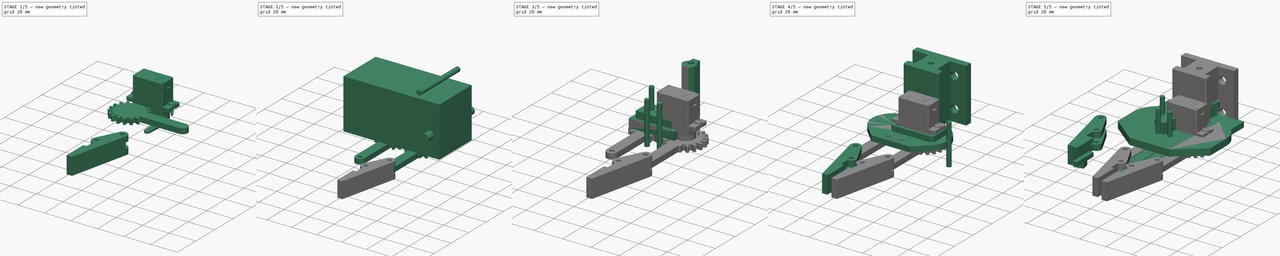
[diagram: build sequence overview — one tinted view per stage of 5, left to right]
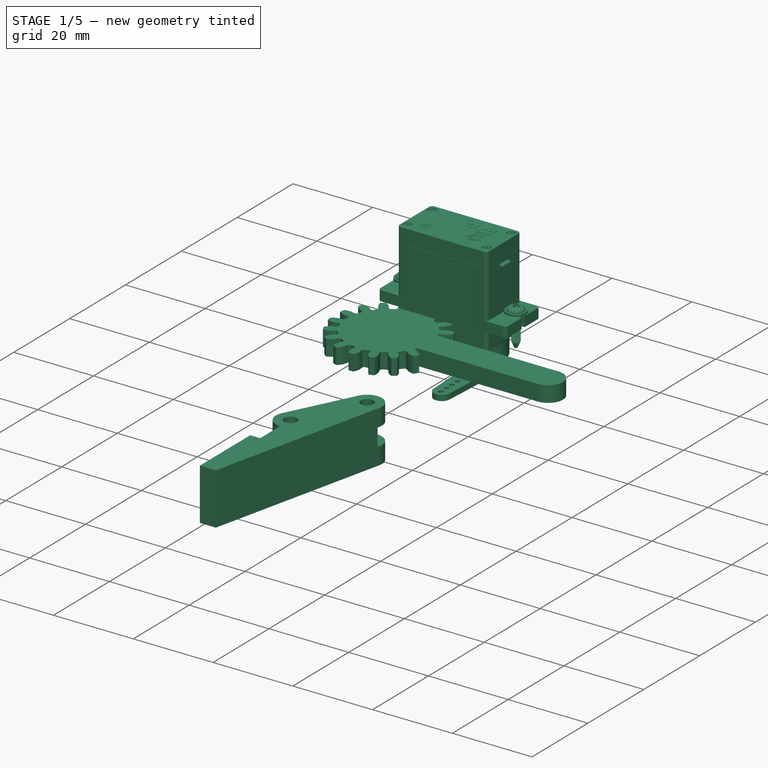
[diagram: stage 1 of 5 — iso view after this stage's code; geometry added in this stage tinted green]
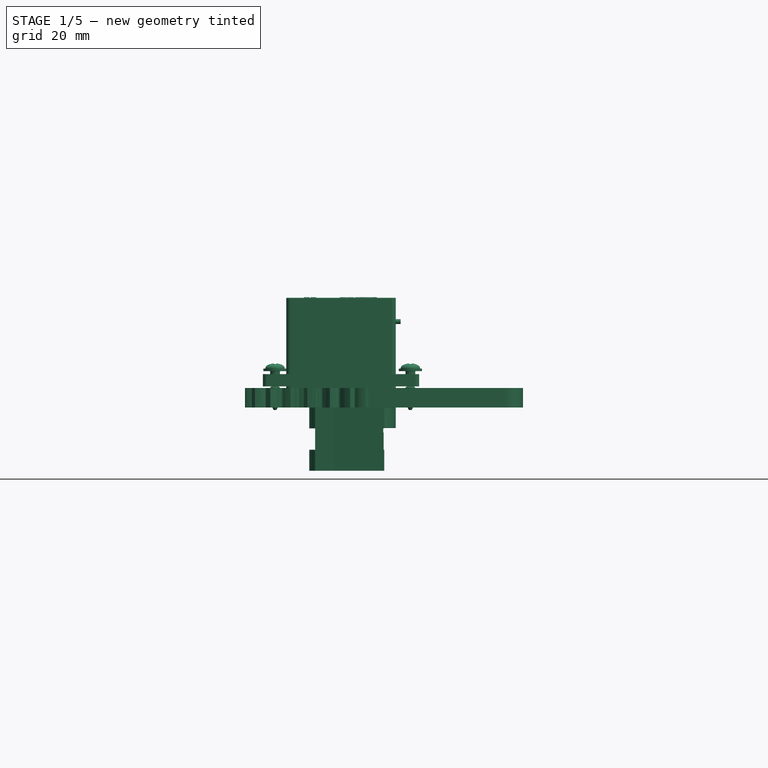
[diagram: stage 1 of 5 — front view after this stage's code; geometry added in this stage tinted green]
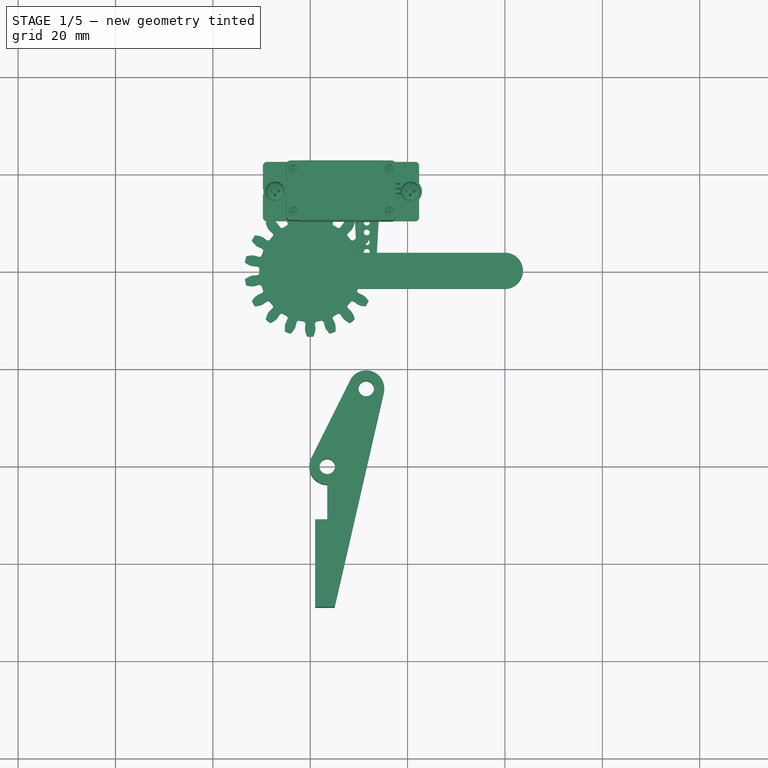
[diagram: stage 1 of 5 — top view after this stage's code; geometry added in this stage tinted green]
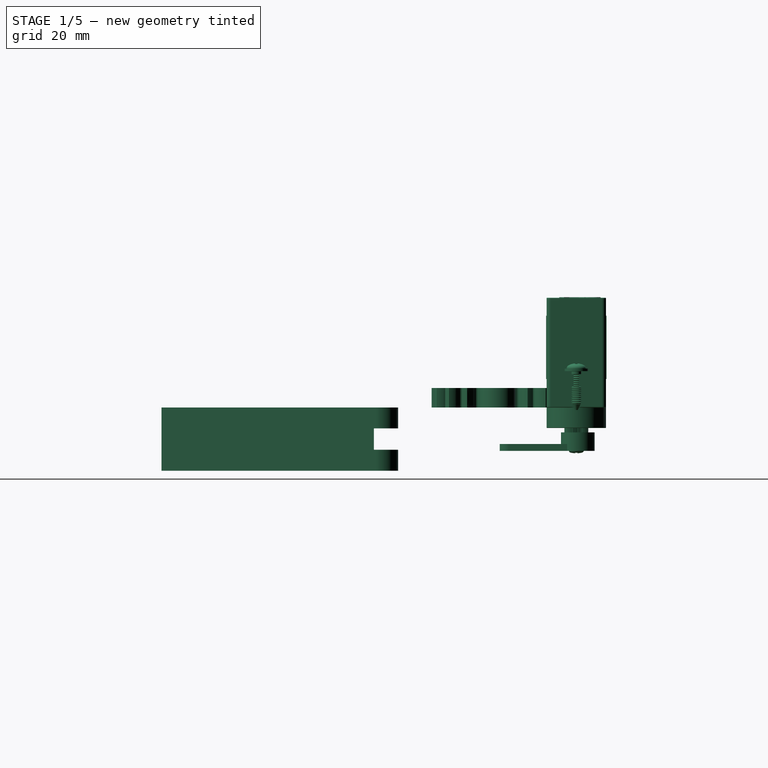
[diagram: stage 1 of 5 — right view after this stage's code; geometry added in this stage tinted green]
FCSTD DOCUMENT  (FreeCAD 0.16R6712 (Git))
Label: Nueva pinza
License: All rights reserved
LicenseURL: http://en.wikipedia.org/wiki/All_rights_reserved
objects: Part::FeaturePython×20, Part::Feature×20, Part::MultiFuse×18, Sketcher::SketchObject×15, Part::Cut×12, PartDesign::Pad×7, Part::Box×7, Part::Cylinder×7, App::DocumentObjectGroup×5, Part::Fillet×4, Part::Part2DObjectPython×4, PartDesign::Pocket×3, PartDesign::Body×2, Part::Extrusion×2
note: 131 computed .brp shape members not serialized (recipe doc carries the construction recipe); baked Part::Feature solids carry a one-line shape summary decoded from their .brp

FEATURE [Part::Cylinder] Cylinder005  label="finger-drill-master"
  Angle = 360
  Height = 30
  Placement = pos=(0,0,-8) rot=(0,0,1;0rad)
  Radius = 1.6
FEATURE [Part::FeaturePython] Clone001  label="finger-claw-drill-1"  # Draft clone (typed FeaturePython)
  Objects = -> [Cylinder005]
  Placement = pos=(-5.5,28.9,-8) rot=(0,0,1;0rad)
  Scale = (1,1,1)
FEATURE [Part::FeaturePython] Clone002  label="finger-claw-drill-2"  # Draft clone (typed FeaturePython)
  Objects = -> [Cylinder005]
  Placement = pos=(-13.5,44.9,-8) rot=(0,0,1;0rad)
  Scale = (1,1,1)
FEATURE [Part::MultiFuse] Fusion012  label="finger-drills"
  Shapes = -> [Clone002,Clone001]
FEATURE [Part::Part2DObjectPython] InvoluteGear001  # Draft 2D object (typed FeaturePython)
  ExternalGear = true
  HighPrecision = true
  Modules = 1.35
  NumberOfTeeth = 18
  Placement = pos=(0,0,0) rot=(0,0,-1;0.174533rad)
  PressureAngle = 12
FEATURE [Sketcher::SketchObject] Sketch004  label="link-body-sketch002"
  sketch-geometry (4):
    g0: ArcOfCircle CenterX=0 CenterY=0 CenterZ=0 NormalX=0 NormalY=0 NormalZ=1 Radius=3.7 StartAngle=1.5708 EndAngle=4.71239
    g1: ArcOfCircle CenterX=40 CenterY=0 CenterZ=0 NormalX=0 NormalY=0 NormalZ=1 Radius=3.7 StartAngle=4.71239 EndAngle=7.85398
    g2: LineSegment StartX=0 StartY=-3.7 StartZ=0 EndX=40 EndY=-3.7 EndZ=0
    g3: LineSegment StartX=0 StartY=3.7 StartZ=0 EndX=40 EndY=3.7 EndZ=0
  constraints (9):
    c: Tangent(g0,g3) = 1.5708
    c: Tangent(g0,g2) = -1.5708
    c: Tangent(g2,g1) = -1.5708
    c: Tangent(g3,g1) = 1.5708
    c: Horizontal(g2)
    c: Equal(g0,g1)
    c: Coincident(g0,g-1)
    c: Radius(g0) = 3.7
    c: DistanceX(g2) = 40
FEATURE [PartDesign::Pad] Pad004  label="link-body002"
  Length = 4
  Length2 = 100
  Sketch = -> Sketch004
  Type = 0
FEATURE [Part::Extrusion] Extrude001
  Base = -> InvoluteGear001
  Dir = (0,0,4)
  Solid = true
FEATURE [Part::Box] Box007  label="Cube002"
  Height = 3
  Length = 5
  Width = 4
FEATURE [Sketcher::SketchObject] Sketch006  label="finger-sketch"
  Placement = pos=(0,0,0) rot=(1,0,0;1.5708rad)
  Support = -> Box007 [Face3]
  sketch-geometry (9):
    g0: LineSegment StartX=0 StartY=0 StartZ=0 EndX=0 EndY=18 EndZ=0
    g1: LineSegment StartX=0 StartY=18 StartZ=0 EndX=-5.5 EndY=18 EndZ=0
    g2: LineSegment StartX=-5.5 StartY=18 StartZ=0 EndX=-5.5 EndY=25.2 EndZ=0
    g3: LineSegment StartX=-17.1064 StartY=44.073 StartZ=0 EndX=-7 EndY=0 EndZ=0
    g4: LineSegment StartX=-7 StartY=0 StartZ=0 EndX=0 EndY=0 EndZ=0
    g5: ArcOfCircle CenterX=-13.5 CenterY=44.9 CenterZ=0 NormalX=0 NormalY=0 NormalZ=1 Radius=3.7 StartAngle=0.463648 EndAngle=3.36701
    g6: ArcOfCircle CenterX=-5.5 CenterY=28.9 CenterZ=0 NormalX=0 NormalY=0 NormalZ=1 Radius=3.7 StartAngle=4.71239 EndAngle=6.74684
    g7: LineSegment StartX=-10.1906 StartY=46.5547 StartZ=0 EndX=-2.19063 EndY=30.5547 EndZ=0
    g8: Circle [constr] CenterX=-5.5 CenterY=28.9 CenterZ=0 NormalX=0 NormalY=0 NormalZ=1 Radius=3.7
  constraints (27):
    c: Vertical(g0)
    c: Coincident(g0,g1)
    c: Horizontal(g1)
    c: Coincident(g1,g2)
    c: Coincident(g3,g4)
    c: Coincident(g4,g0)
    c: Horizontal(g4)
    c: Coincident(g5,g3)
    c: Radius(g5) = 3.7
    c: Coincident(g6,g2)
    c: Coincident(g7,g5)
    c: Coincident(g7,g6)
    c: Equal(g6,g5)
    c: Tangent(g3,g5)
    c: Tangent(g7,g5)
    c: Tangent(g6,g7)
    c: Vertical(g2)
    c: DistanceY(g0) = 18
    c: DistanceX(g4) = 7
    c: DistanceX(g6,g5) = -8
    c: DistanceY(g6,g5) = 16
    c: PointOnObject(g6,g2)
    c: DistanceX(g1) = -5.5
    c: DistanceY(g2,g1) = -7.2
    c: Coincident(g0,g-1)
    c: Coincident(g8,g6)
    c: Equal(g6,g8)
FEATURE [PartDesign::Pad] Pad001  label="finger-body"
  Length = 13
  Length2 = 100
  Sketch = -> Sketch006
  Type = 0
FEATURE [Sketcher::SketchObject] Sketch007
  Placement = pos=(10.4694,5.23469,0) rot=(0.400447,0.647936,0.647936;2.37981rad)
  Support = -> Pad001 [Face8]
  sketch-geometry (6):
    g0: LineSegment StartX=23.2529 StartY=8.7 StartZ=0 EndX=51.2529 EndY=8.7 EndZ=0
    g1: LineSegment StartX=51.2529 StartY=8.7 StartZ=0 EndX=51.2529 EndY=4.3 EndZ=0
    g2: LineSegment StartX=51.2529 StartY=4.3 StartZ=0 EndX=23.2529 EndY=4.3 EndZ=0
    g3: LineSegment StartX=23.2529 StartY=4.3 StartZ=0 EndX=23.2529 EndY=8.7 EndZ=0
    g4: LineSegment [constr] StartX=23.2529 StartY=6.5 StartZ=0 EndX=51.2529 EndY=6.5 EndZ=0
    g5: LineSegment [constr] StartX=37.2529 StartY=13 StartZ=0 EndX=37.2529 EndY=0 EndZ=0
FEATURE [PartDesign::Pocket] Pocket  label="finger"
  Length = 7.4
  Sketch = -> Sketch007
  Type = 0
FEATURE [Part::Cut] Cut010  label="finger-final-src"
  Base = -> Pocket
  Tool = -> Fusion012
FEATURE [Sketcher::SketchObject] Sketch009
  ExternalGeometry = -> [Cut010]
  Placement = pos=(0,0,0) rot=(1,0,0;1.5708rad)
  Support = -> Cut010 [Face7]
  sketch-geometry (5):
    g0: LineSegment StartX=0 StartY=9.9 StartZ=0 EndX=-3 EndY=9.9 EndZ=0
    g1: LineSegment StartX=-3 StartY=9.9 StartZ=0 EndX=-3 EndY=3.1 EndZ=0
    g2: LineSegment StartX=-3 StartY=3.1 StartZ=0 EndX=0 EndY=3.1 EndZ=0
    g3: LineSegment StartX=0 StartY=3.1 StartZ=0 EndX=0 EndY=9.9 EndZ=0
    g4: LineSegment [constr] StartX=-7 StartY=6.5 StartZ=0 EndX=0 EndY=6.5 EndZ=0
  constraints (15):
    c: Coincident(g0,g1)
    c: Coincident(g1,g2)
    c: Coincident(g2,g3)
    c: Coincident(g3,g0)
    c: Horizontal(g0)
    c: Horizontal(g2)
    c: Vertical(g1)
    c: Vertical(g3)
    c: PointOnObject(g0,g-2)
    c: DistanceY(g3) = 6.8
    c: PointOnObject(g4,g-5)
    c: PointOnObject(g4,g3)
    c: Symmetric(g-5,g-5,g4)
    c: Symmetric(g0,g2,g4)
    c: DistanceX(g0) = -3
FEATURE [PartDesign::Pocket] Pocket001  label="left-finger-guide"
  Length = 20
  Sketch = -> Sketch009
  Type = 0
FEATURE [Part::Box] Box011  label="Cubo006"
  Height = 14
  Length = 5
  Placement = pos=(-3,-1,0) rot=(0,0,1;0rad)
  Width = 19
FEATURE [Part::Cut] Cut011  label="left-finger"
  Base = -> Pocket001
  Placement = pos=(1,-69,-12) rot=(0,0,1;0rad)
  Tool = -> Box011
FEATURE [Part::FeaturePython] Clone039  label="Right-finger"  # Draft clone (typed FeaturePython)
  Objects = -> [Cut011]
  Placement = pos=(-2,-69,0) rot=(0,1,0;3.14159rad)
  Scale = (1,1,1)
FEATURE [Part::Feature] Part__Feature  label="SG90 - Micro Servo 9g - Tower Pro.1_Pea"
  Placement = pos=(6.67327,16.8178,27.7832) rot=(0,0,1;0rad)
  shape: bbox 22.5 x 10.3 x 12.2 mm, 10 faces (baked)
FEATURE [Part::Feature] Part__Feature001  label="SG90 - Micro Servo 9g - Tower Pro.1_Pea001"
  Placement = pos=(6.67327,16.8178,27.7832) rot=(0,0,1;0rad)
  shape: bbox 17 x 13 x 0.1 mm, 50 faces (baked)
FEATURE [Part::Feature] Part__Feature002  label="SG90 - Micro Servo 9g - Tower Pro.1_Pea002"
  Placement = pos=(6.67327,16.8178,27.7832) rot=(0,0,1;0rad)
  shape: bbox 17 x 13 x 0.1 mm, 50 faces (baked)
FEATURE [Part::Feature] Part__Feature003  label="SG90 - Micro Servo 9g - Tower Pro.1_Pea003"
  Placement = pos=(6.67327,16.8178,27.7832) rot=(0,0,1;0rad)
  shape: bbox 1.933 x 1 x 1.949 mm, 19 faces (baked)
FEATURE [Part::Feature] Part__Feature004  label="SG90 - Micro Servo 9g - Tower Pro.1_Pea004"
  Placement = pos=(6.67327,16.8178,27.7832) rot=(0,0,1;0rad)
  shape: bbox 1.933 x 1 x 1.949 mm, 19 faces (baked)
FEATURE [Part::Feature] Part__Feature005  label="SG90 - Micro Servo 9g - Tower Pro.1_Pea005"
  Placement = pos=(6.67327,16.8178,27.7832) rot=(0,0,1;0rad)
  shape: bbox 1.933 x 1 x 1.949 mm, 19 faces (baked)
FEATURE [Part::Feature] Part__Feature006  label="SG90 - Micro Servo 9g - Tower Pro.1_Pea006"
  Placement = pos=(6.67327,16.8178,27.7832) rot=(0,0,1;0rad)
  shape: bbox 1.933 x 1 x 1.949 mm, 19 faces (baked)
FEATURE [Part::Feature] Part__Feature007  label="SG90 - Micro Servo 9g - Tower Pro.1_Pea007"
  Placement = pos=(6.67327,16.8178,27.7832) rot=(0,0,1;0rad)
  shape: bbox 22.64 x 5.5 x 12.34 mm, 157 faces (baked)
FEATURE [Part::Feature] Part__Feature008  label="SG90 - Micro Servo 9g - Tower Pro.1_Pea008"
  Placement = pos=(6.67327,16.8178,27.7832) rot=(0,0,1;0rad)
  shape: bbox 3 x 1 x 1 mm, 4 faces (baked)
FEATURE [Part::Feature] Part__Feature009  label="SG90 - Micro Servo 9g - Tower Pro.1_Pea009"
  Placement = pos=(6.67327,16.8178,27.7832) rot=(0,0,1;0rad)
  shape: bbox 3 x 1 x 1 mm, 4 faces (baked)
FEATURE [Part::Feature] Part__Feature010  label="SG90 - Micro Servo 9g - Tower Pro.1_Pea010"
  Placement = pos=(6.67327,16.8178,27.7832) rot=(0,0,1;0rad)
  shape: bbox 3 x 1 x 1 mm, 4 faces (baked)
FEATURE [Part::Feature] Part__Feature011  label="SG90 - Micro Servo 9g - Tower Pro.1_Pea011"
  Placement = pos=(6.67327,16.8178,27.7832) rot=(0,0,1;0rad)
  shape: bbox 32.1 x 11.05 x 13.21 mm, 102 faces (baked)
FEATURE [Part::Feature] Part__Feature018  label="SG90 - Micro Servo 9g - Tower Pro.6_BS EN ISO 7045 - M2 x 4 - Z - 4S"
  Placement = pos=(1.52327,38.2178,27.7832) rot=(0,0,-1;1.5708rad)
  shape: bbox 3.356 x 5.3 x 3.356 mm, 95 faces (baked)
FEATURE [Part::Feature] Part__Feature012  label="SG90 - Micro Servo 9g - Tower Pro.1_Pea012"
  Placement = pos=(6.67327,16.8178,27.7832) rot=(0,0,1;0rad)
  shape: bbox 4.9 x 7.35 x 4.9 mm, 186 faces (baked)
FEATURE [Part::MultiFuse] Fusion016  label="servo"
  Placement = pos=(13,44,29.8) rot=(0,0.707107,-0.707107;3.14159rad)
  Shapes = -> [Part__Feature,Part__Feature009,Part__Feature008,Part__Feature010,Part__Feature012,Part__Feature011,Part__Feature001,Part__Feature002,Part__Feature004,Part__Feature005,Part__Feature007,Part__Feature003,Part__Feature006,Part__Feature018]
FEATURE [Part::Feature] Part__Feature019  label="SG90 - Micro Servo 9g - Tower Pro.5_BS EN ISO 7045 - M2 x 8 - Z - 8S002"
  Placement = pos=(-7.22673,16.2168,10.0678) rot=(-0.57735,0.57735,0.57735;2.0944rad)
  shape: bbox 4.8 x 4.8 x 9.6 mm, 126 faces (baked)
FEATURE [Part::Feature] Part__Feature020  label="SG90 - Micro Servo 9g - Tower Pro.5_BS EN ISO 7045 - M2 x 8 - Z - 8S003"
  Placement = pos=(20.5733,16.2168,10.0678) rot=(0.57735,0.57735,-0.57735;2.0944rad)
  shape: bbox 4.8 x 4.8 x 9.6 mm, 126 faces (baked)
FEATURE [Part::Feature] Part__Feature021  label="SG90 - Micro Servo 9g - Tower Pro.2_Pea001"
  Placement = pos=(11.6168,16.5233,-7.91776) rot=(0.57735,0.57735,-0.57735;4.18879rad)
  shape: bbox 6.9 x 19.5 x 3.8 mm, 206 faces (baked)
FEATURE [Part::MultiFuse] Fusion017  label="Servo"
  Placement = pos=(0,0,-1) rot=(0,0,1;0rad)
  Shapes = -> [Fusion016,Part__Feature019,Part__Feature020,Part__Feature021]
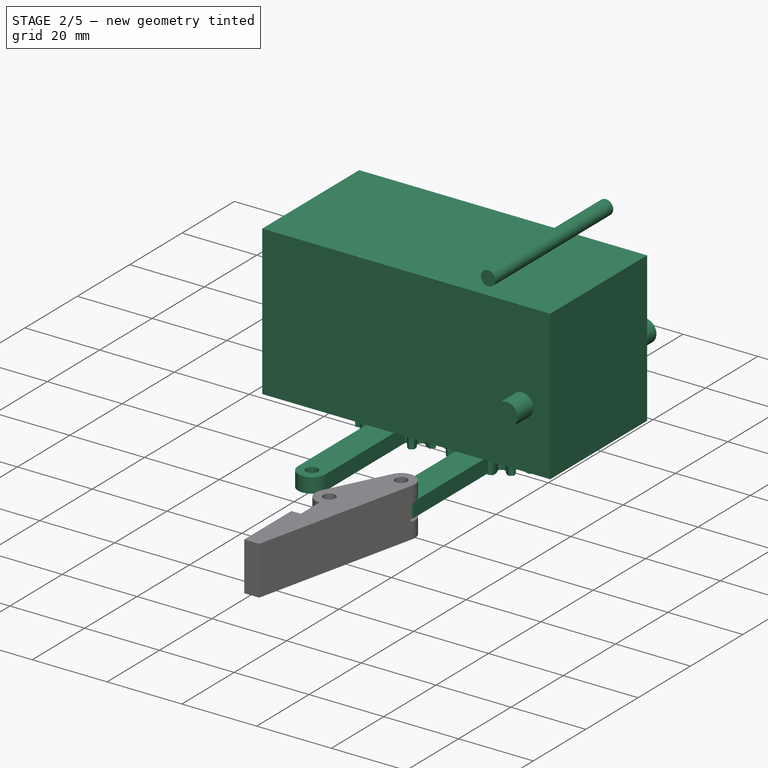
[diagram: stage 2 of 5 — iso view after this stage's code; geometry added in this stage tinted green]
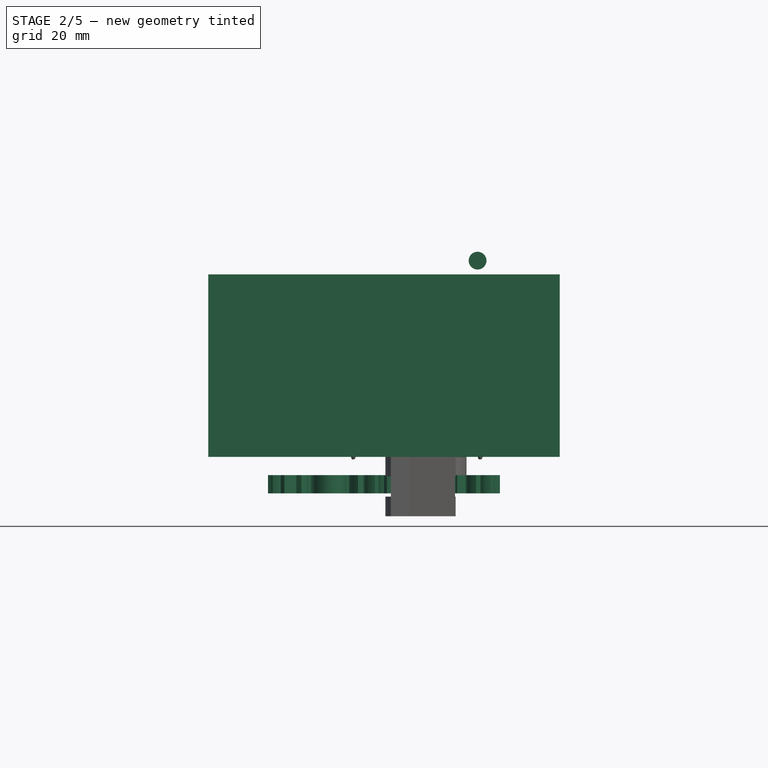
[diagram: stage 2 of 5 — front view after this stage's code; geometry added in this stage tinted green]
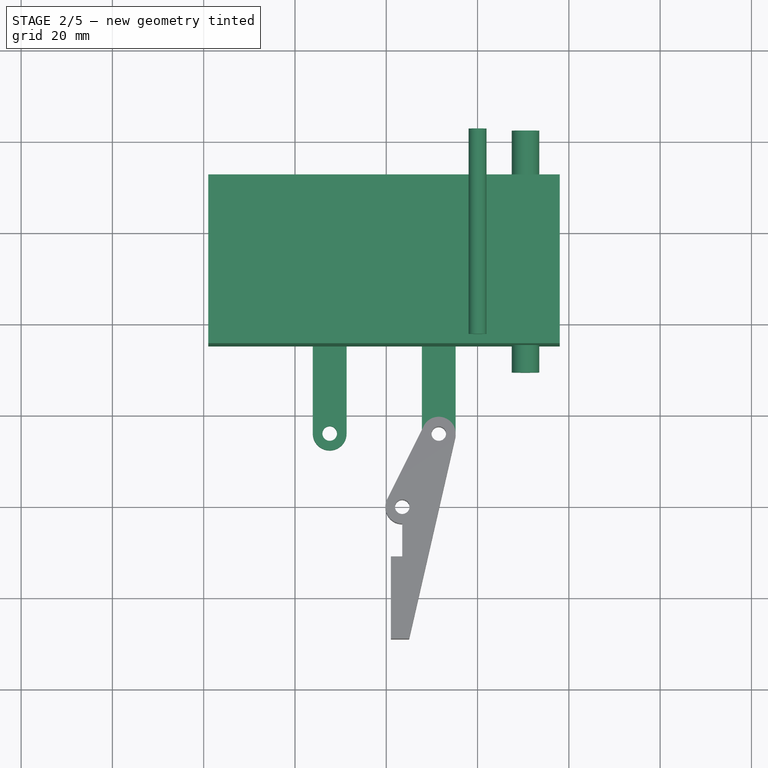
[diagram: stage 2 of 5 — top view after this stage's code; geometry added in this stage tinted green]
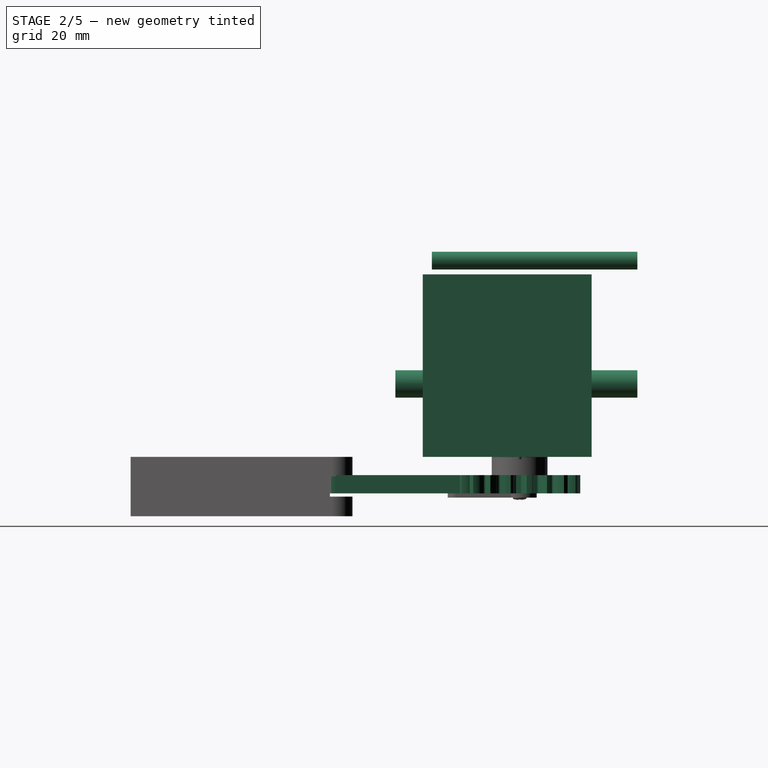
[diagram: stage 2 of 5 — right view after this stage's code; geometry added in this stage tinted green]
FEATURE [Part::Cylinder] Cylinder  label="Taladro"
  Angle = 360
  Height = 53
  Placement = pos=(30.5,42,16) rot=(1,0,0;1.5708rad)
  Radius = 3
FEATURE [Part::Cylinder] Cylinder004  label="Cilindro"
  Angle = 360
  Height = 45
  Placement = pos=(20,42,43) rot=(1,0,0;1.5708rad)
  Radius = 1.95
FEATURE [Part::Box] Box006  label="Cubo005"
  Height = 40
  Length = 77
  Placement = pos=(-39,-5,0) rot=(0,0,1;0rad)
  Width = 37
FEATURE [App::DocumentObjectGroup] Group002  label="link-src"
FEATURE [Part::Part2DObjectPython] InvoluteGear  # Draft 2D object (typed FeaturePython)
  ExternalGear = true
  HighPrecision = true
  Modules = 1.35
  NumberOfTeeth = 18
  PressureAngle = 12
FEATURE [Part::Extrusion] Extrude
  Base = -> InvoluteGear
  Dir = (0,0,4)
  Solid = true
FEATURE [Sketcher::SketchObject] Sketch003  label="link-body-sketch001"
  sketch-geometry (4):
    g0: ArcOfCircle CenterX=0 CenterY=0 CenterZ=0 NormalX=0 NormalY=0 NormalZ=1 Radius=3.7 StartAngle=1.5708 EndAngle=4.71239
    g1: ArcOfCircle CenterX=40 CenterY=0 CenterZ=0 NormalX=0 NormalY=0 NormalZ=1 Radius=3.7 StartAngle=4.71239 EndAngle=7.85398
    g2: LineSegment StartX=0 StartY=-3.7 StartZ=0 EndX=40 EndY=-3.7 EndZ=0
    g3: LineSegment StartX=0 StartY=3.7 StartZ=0 EndX=40 EndY=3.7 EndZ=0
  constraints (9):
    c: Tangent(g0,g3) = 1.5708
    c: Tangent(g0,g2) = -1.5708
    c: Tangent(g2,g1) = -1.5708
    c: Tangent(g3,g1) = 1.5708
    c: Horizontal(g2)
    c: Equal(g0,g1)
    c: Coincident(g0,g-1)
    c: Radius(g0) = 3.7
    c: DistanceX(g2) = 40
FEATURE [PartDesign::Pad] Pad003  label="link-body001"
  Length = 4
  Length2 = 100
  Sketch = -> Sketch003
  Type = 0
FEATURE [Part::MultiFuse] Fusion002
  Shapes = -> [Pad003,Extrude]
FEATURE [Part::FeaturePython] Clone010  label="gear-drill-1"  # Draft clone (typed FeaturePython)
  Objects = -> [Cylinder005]
  Placement = pos=(0,0,-8) rot=(0,0,1;0rad)
  Scale = (1,1,1)
FEATURE [Part::FeaturePython] Clone011  label="gear-drill-2"  # Draft clone (typed FeaturePython)
  Objects = -> [Cylinder005]
  Placement = pos=(40,0,-8) rot=(0,0,1;0rad)
  Scale = (1,1,1)
FEATURE [Part::MultiFuse] Fusion003  label="gear-drills"
  Shapes = -> [Clone010,Clone011]
FEATURE [Part::Cut] Cut002  label="left-gear"
  Base = -> Fusion002
  Placement = pos=(11.5,16,-8) rot=(0,0,-1;1.5708rad)
  Tool = -> Fusion003
FEATURE [Part::Cylinder] Cylinder006  label="finger-drill-master002"
  Angle = 360
  Height = 30
  Placement = pos=(0,0,-8) rot=(0,0,1;0rad)
  Radius = 1.6
FEATURE [Part::FeaturePython] Clone013  label="gear-drill-003"  # Draft clone (typed FeaturePython)
  Objects = -> [Cylinder006]
  Placement = pos=(0,0,-8) rot=(0,0,1;0rad)
  Scale = (1,1,1)
FEATURE [Part::FeaturePython] Clone014  label="gear-drill-004"  # Draft clone (typed FeaturePython)
  Objects = -> [Cylinder006]
  Placement = pos=(40,0,-8) rot=(0,0,1;0rad)
  Scale = (1,1,1)
FEATURE [Part::MultiFuse] Fusion005  label="gear-drills001"
  Shapes = -> [Clone013,Clone014]
FEATURE [Part::MultiFuse] Fusion006
  Shapes = -> [Pad004,Extrude001]
FEATURE [Part::Cut] Cut003  label="right-gear"
  Base = -> Fusion006
  Placement = pos=(-12.4,16,-8) rot=(0,0,-1;1.5708rad)
  Tool = -> Fusion005
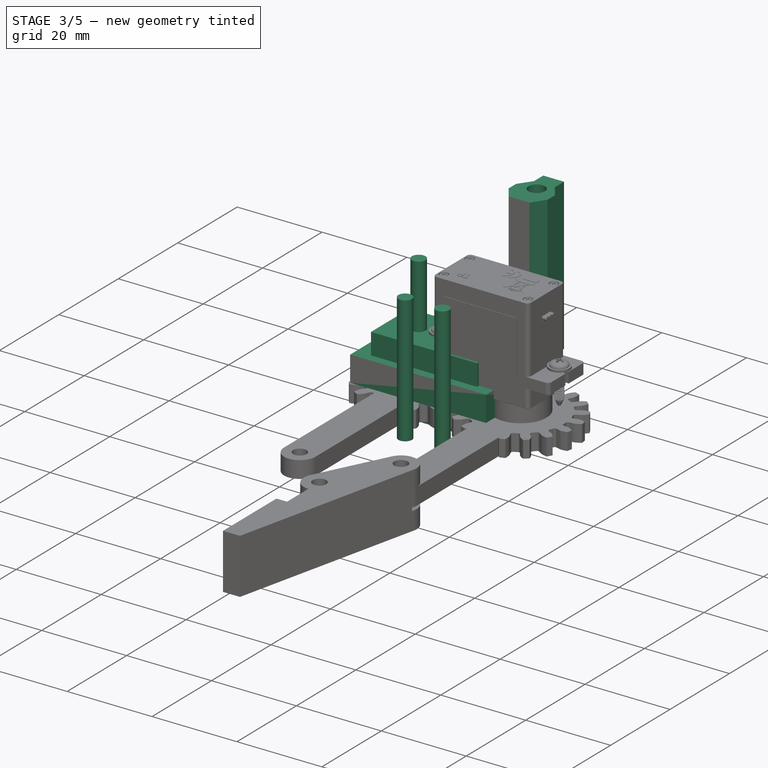
[diagram: stage 3 of 5 — iso view after this stage's code; geometry added in this stage tinted green]
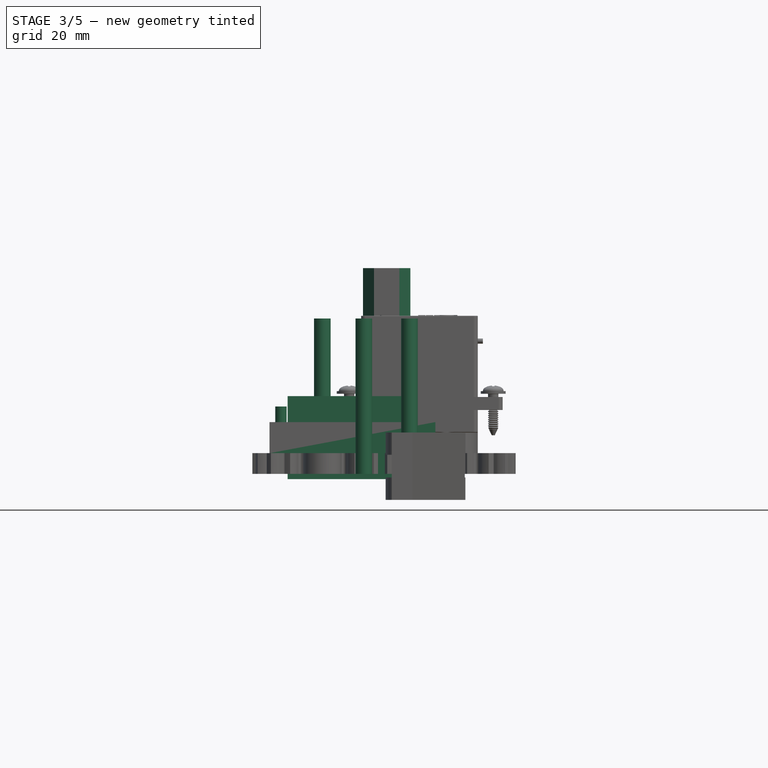
[diagram: stage 3 of 5 — front view after this stage's code; geometry added in this stage tinted green]
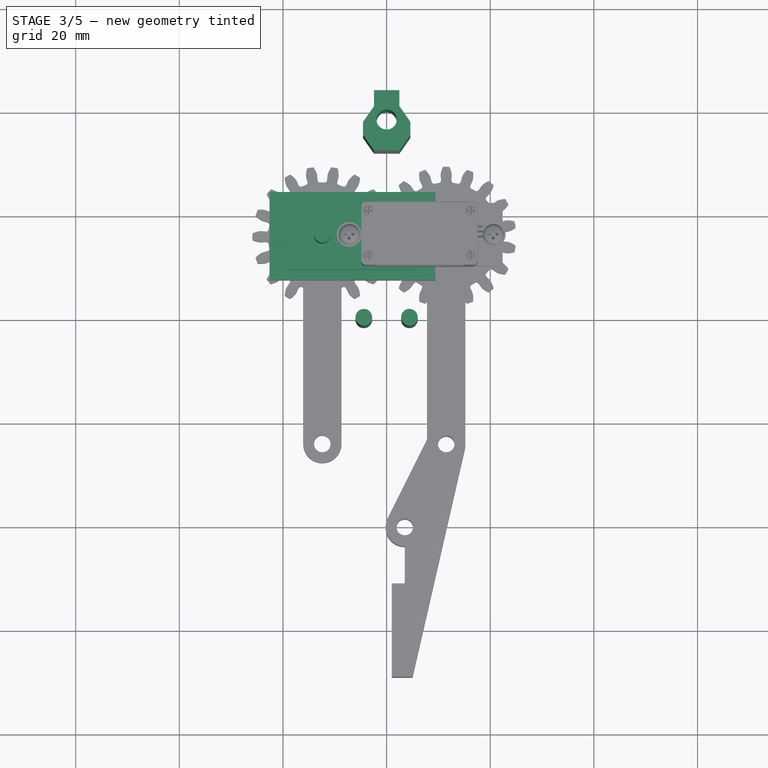
[diagram: stage 3 of 5 — top view after this stage's code; geometry added in this stage tinted green]
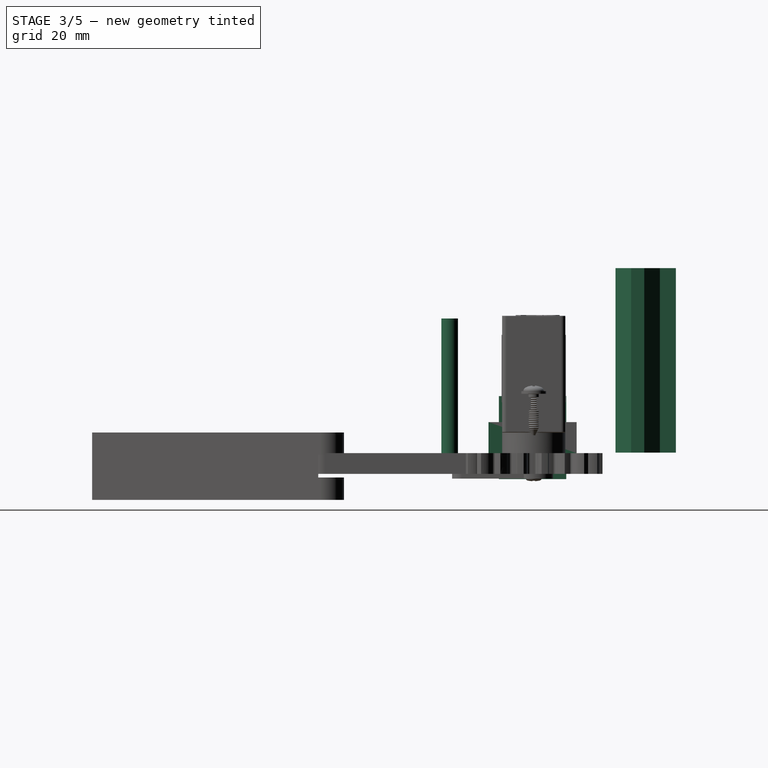
[diagram: stage 3 of 5 — right view after this stage's code; geometry added in this stage tinted green]
FEATURE [Sketcher::SketchObject] Sketch001
  Placement = pos=(0,0,5) rot=(0,0,1;0rad)
  Support = -> Pad [Face10]
  sketch-geometry (10):
    g0: Circle CenterX=-8.96111 CenterY=14.1918 CenterZ=0 NormalX=0 NormalY=0 NormalZ=1 Radius=2.2
    g1: Circle CenterX=8.96111 CenterY=14.1918 CenterZ=0 NormalX=0 NormalY=0 NormalZ=1 Radius=2.2
    g2: LineSegment StartX=3.14718 StartY=20.1182 StartZ=0 EndX=26.1472 EndY=20.1182 EndZ=0
    g3: LineSegment StartX=26.1472 StartY=20.1182 StartZ=0 EndX=26.1472 EndY=8.11819 EndZ=0
    g4: LineSegment StartX=26.1472 StartY=8.11819 StartZ=0 EndX=3.14718 EndY=8.11819 EndZ=0
    g5: LineSegment StartX=3.14718 StartY=8.11819 StartZ=0 EndX=3.14718 EndY=20.1182 EndZ=0
    g6: LineSegment StartX=-0.85282 StartY=25.1182 StartZ=0 EndX=30.1472 EndY=25.1182 EndZ=0
    g7: LineSegment StartX=30.1472 StartY=25.1182 StartZ=0 EndX=30.1472 EndY=3.11819 EndZ=0
    g8: LineSegment StartX=30.1472 StartY=3.11819 StartZ=0 EndX=-0.85282 EndY=3.11819 EndZ=0
    g9: LineSegment StartX=-0.85282 StartY=3.11819 StartZ=0 EndX=-0.85282 EndY=25.1182 EndZ=0
  constraints (25):
    c: Symmetric(g0,g1,g-2)
    c: Radius(g0) = 2.2
    c: Equal(g1,g0)
    c: Coincident(g2,g3)
    c: Coincident(g3,g4)
    c: Coincident(g4,g5)
    c: Coincident(g5,g2)
    c: Horizontal(g2)
    c: Horizontal(g4)
    c: Vertical(g3)
    c: Vertical(g5)
    c: DistanceX(g4,g4) = 23
    c: DistanceY(g5,g5) = 12
    c: Coincident(g6,g7)
    c: Coincident(g7,g8)
    c: Coincident(g8,g9)
    c: Coincident(g9,g6)
    c: Horizontal(g6)
    c: Horizontal(g8)
    c: Vertical(g7)
    c: Vertical(g9)
    c: DistanceY(g2,g6) = 5
    c: DistanceY(g7,g3) = 5
    c: DistanceX(g6,g2) = 4
    c: DistanceX(g3,g7) = 4
FEATURE [Part::Cylinder] Cylinder001  label="finger-drill-master001"
  Angle = 360
  Height = 30
  Placement = pos=(0,0,-8) rot=(0,0,1;0rad)
  Radius = 1.6
FEATURE [Part::FeaturePython] Clone019  label="base-drill-1"  # Draft clone (typed FeaturePython)
  Objects = -> [Cylinder001]
  Placement = pos=(-12.4012,16,-8) rot=(0,0,1;0rad)
  Scale = (1,1,1)
FEATURE [Part::FeaturePython] Clone020  label="base-drill-2"  # Draft clone (typed FeaturePython)
  Objects = -> [Cylinder001]
  Placement = pos=(-4.40118,-8.7e-11,-8) rot=(0,0,1;0rad)
  Scale = (1,1,1)
FEATURE [Part::FeaturePython] Clone021  label="base-drill-3"  # Draft clone (typed FeaturePython)
  Objects = -> [Cylinder001]
  Placement = pos=(12.4011,16,-8) rot=(0,0,1;0rad)
  Scale = (1,1,1)
FEATURE [Part::FeaturePython] Clone022  label="base-drill-4"  # Draft clone (typed FeaturePython)
  Objects = -> [Cylinder001]
  Placement = pos=(4.40118,-5.3e-11,-8) rot=(0,0,1;0rad)
  Scale = (1,1,1)
FEATURE [Part::Box] Box001  label="Cube"
  Height = 6
  Length = 32
  Placement = pos=(-22.6,7.5,-4) rot=(0,0,1;0rad)
  Width = 17
FEATURE [Part::Box] Box002  label="Cube001"
  Height = 16
  Length = 25
  Placement = pos=(-19.1,9.5,-9) rot=(0,0,1;0rad)
  Width = 13
FEATURE [Part::Cylinder] Cylinder002  label="Cylinder011"
  Angle = 360
  Height = 10
  Placement = pos=(7.2,16,-5) rot=(0,0,1;0rad)
  Radius = 1.1
FEATURE [Part::Cylinder] Cylinder003  label="Cylinder001"
  Angle = 360
  Height = 10
  Placement = pos=(-20.4,16,-5) rot=(0,0,1;0rad)
  Radius = 1.1
FEATURE [Part::MultiFuse] Fusion011
  Shapes = -> [Cylinder002,Cylinder003]
FEATURE [PartDesign::Body] Body002
FEATURE [PartDesign::Body] Body003  label="enganche"
  Placement = pos=(45,0,0) rot=(0,0,1;0rad)
FEATURE [Part::Box] Box005  label="Cubo004"
  Height = 20
  Length = 40
  Placement = pos=(45,0,0) rot=(0,0,1;0rad)
  Width = 40
FEATURE [Part::Cut] Cut007  label="enganche002"
  Base = -> Box005
  Placement = pos=(-45,0,37) rot=(0,0,1;0rad)
  Tool = -> Body003
FEATURE [Part::MultiFuse] Fusion001
  Shapes = -> [Cut007,Body002]
FEATURE [Part::Cut] Cut
  Base = -> Fusion001
  Tool = -> Cylinder
FEATURE [Part::Cut] Cut008  label="Cajafinal"
  Base = -> Cut
  Placement = pos=(-20,-5,40) rot=(-1,0,0;1.5708rad)
  Tool = -> Cylinder004
FEATURE [Part::Cut] Cut009
  Base = -> Cut008
  Placement = pos=(0,0,-8.3) rot=(0,0,1;0rad)
  Tool = -> Box006
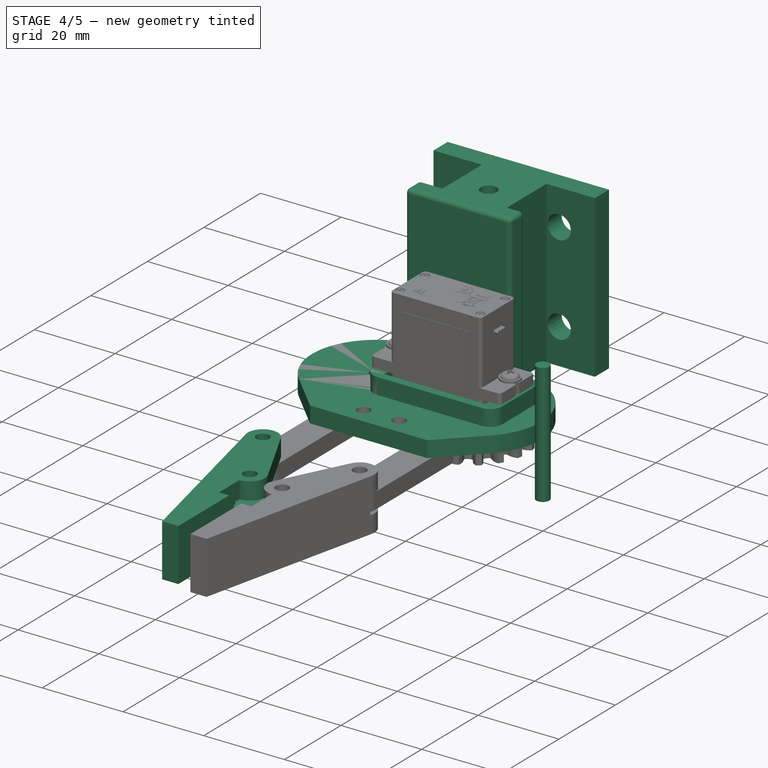
[diagram: stage 4 of 5 — iso view after this stage's code; geometry added in this stage tinted green]
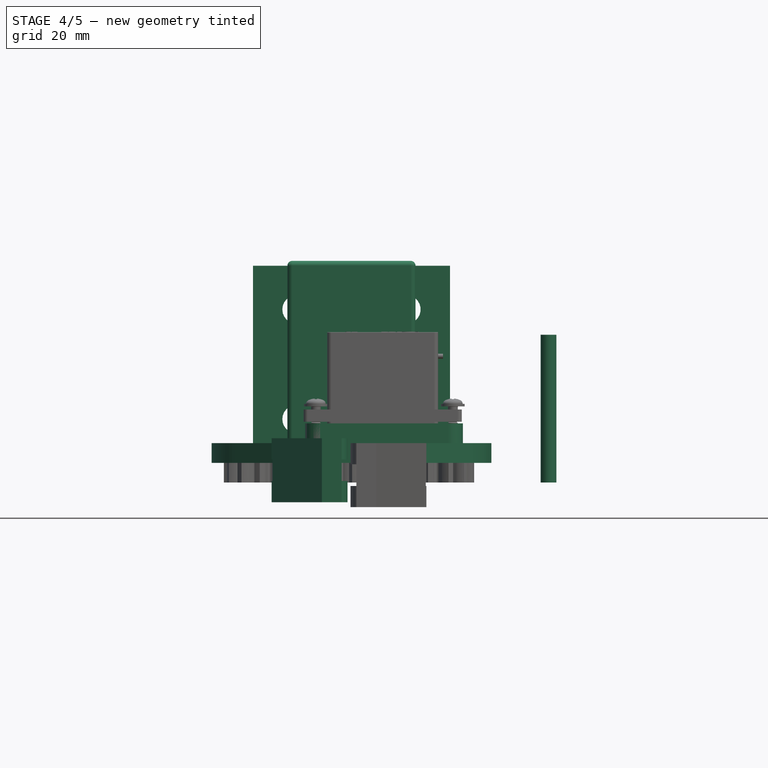
[diagram: stage 4 of 5 — front view after this stage's code; geometry added in this stage tinted green]
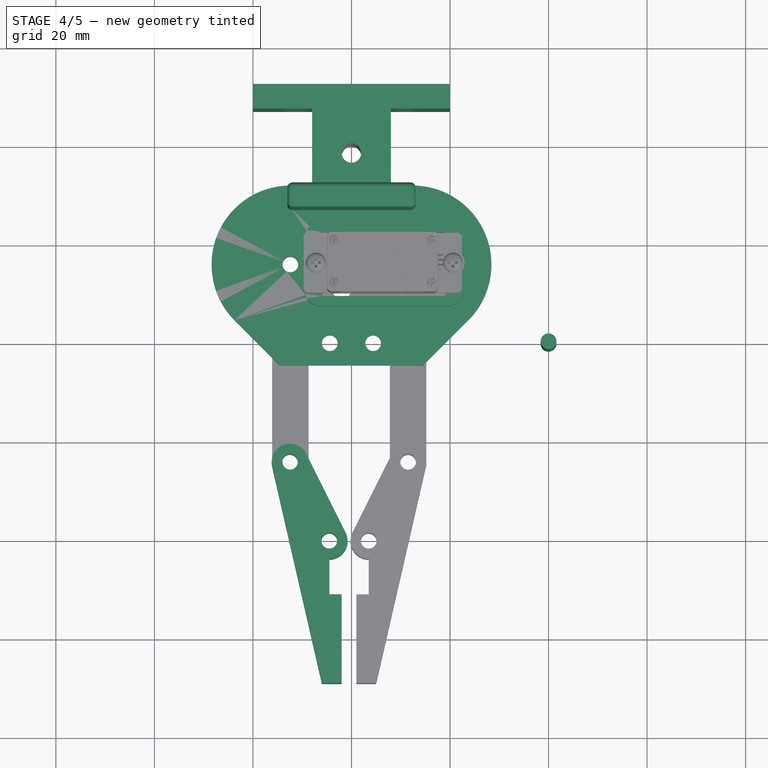
[diagram: stage 4 of 5 — top view after this stage's code; geometry added in this stage tinted green]
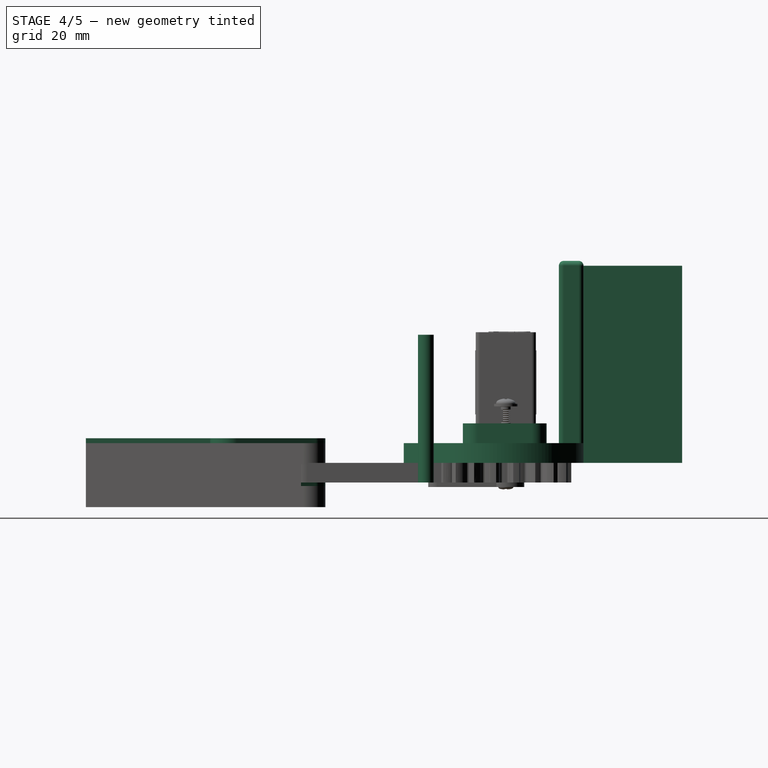
[diagram: stage 4 of 5 — right view after this stage's code; geometry added in this stage tinted green]
FEATURE [Part::Box] Box  label="Cubo"
  Height = 39
  Length = 26
  Placement = pos=(-13,27,2) rot=(0,0,1;0rad)
  Width = 5
FEATURE [Part::Fillet] Fillet
  Base = -> Box
  Edges = 1 edges r=1: [Edge8]
FEATURE [Part::Fillet] Fillet001
  Base = -> Fillet
  Edges = 2 edges r=1: [Edge7,Edge14]
FEATURE [Part::Fillet] Fillet002
  Base = -> Fillet001
  Edges = 15 edges r=1: [Edge1,Edge3,Edge4,Edge5,Edge6,Edge7,Edge9,Edge10,Edge12,Edge14,Edge15,Edge16,Edge17,Edge18,Edge19]
  Placement = pos=(0,0,-4) rot=(0,0,1;0rad)
FEATURE [Sketcher::SketchObject] Sketch005  label="base-sketch"
  sketch-geometry (10):
    g0: LineSegment StartX=14.5274 StartY=-4.5 StartZ=0 EndX=-14.5274 EndY=-4.5 EndZ=0
    g1: LineSegment StartX=-14.5274 StartY=-4.5 StartZ=0 EndX=-23.7137 EndY=4.68629 EndZ=0
    g2: LineSegment StartX=14.5274 StartY=-4.5 StartZ=0 EndX=23.7137 EndY=4.68629 EndZ=0
    g3: ArcOfCircle CenterX=-12.4 CenterY=16 CenterZ=0 NormalX=0 NormalY=0 NormalZ=1 Radius=16 StartAngle=1.5708 EndAngle=3.92699
    g4: ArcOfCircle CenterX=12.4 CenterY=16 CenterZ=0 NormalX=0 NormalY=0 NormalZ=1 Radius=16 StartAngle=5.49779 EndAngle=7.85398
    g5: LineSegment StartX=-12.4 StartY=32 StartZ=0 EndX=12.4001 EndY=32 EndZ=0
    g6: LineSegment [constr] StartX=-12.4 StartY=16 StartZ=0 EndX=12.4 EndY=16 EndZ=0
    g7: LineSegment [constr] StartX=-12.4 StartY=16 StartZ=0 EndX=-4.4 EndY=0 EndZ=0
    g8: LineSegment [constr] StartX=-4.4 StartY=0 StartZ=0 EndX=4.4 EndY=0 EndZ=0
    g9: LineSegment [constr] StartX=4.4 StartY=0 StartZ=0 EndX=12.4 EndY=16 EndZ=0
  constraints (29):
    c: Horizontal(g0)
    c: Coincident(g0,g1)
    c: Coincident(g0,g2)
    c: Coincident(g3,g1)
    c: Horizontal(g5)
    c: Coincident(g5,g3)
    c: Coincident(g5,g4)
    c: Horizontal(g6)
    c: Coincident(g7,g8)
    c: Horizontal(g8)
    c: Coincident(g8,g9)
    c: Coincident(g9,g6)
    c: Coincident(g7,g6)
    c: PointOnObject(g8,g-1)
    c: Symmetric(g7,g8,g-2)
    c: Symmetric(g6,g6,g-2)
    c: DistanceX(g8) = 8.8
    c: DistanceX(g6) = 24.8
    c: DistanceY(g6,g8) = -16
    c: Symmetric(g0,g0,g-2)
    c: DistanceY(g8,g0) = -4.5
    c: Angle(g-1,g1) = 2.35619
    c: Coincident(g3,g6)
    c: Coincident(g4,g6)
    c: Tangent(g1,g3)
    c: Coincident(g2,g4)
    c: Symmetric(g1,g2,g-2)
    c: Tangent(g5,g3)
    c: Radius(g3) = 16
FEATURE [PartDesign::Pad] Pad005  label="base-body"
  Length = 4
  Length2 = 100
  Sketch = -> Sketch005
  Type = 0
FEATURE [Part::MultiFuse] Fusion007  label="base-drills"
  Shapes = -> [Clone019,Clone021,Clone020,Clone022]
FEATURE [Part::Cut] Cut004  label="base-copia"
  Base = -> Pad005
  Tool = -> Fusion007
FEATURE [Part::MultiFuse] Fusion010
  Shapes = -> [Cut004,Box001]
FEATURE [Part::Cut] Cut005
  Base = -> Fusion010
  Tool = -> Box002
FEATURE [Part::Fillet] Fillet003
  Base = -> Cut005
  Edges = 4 edges r=3: [Edge9,Edge11,Edge12,Edge14]
FEATURE [Part::Cut] Cut006  label="base-servo"
  Base = -> Fillet003
  Placement = pos=(0,0,0) rot=(0,1,0;3.14159rad)
  Tool = -> Fusion011
FEATURE [Part::MultiFuse] Fusion
  Shapes = -> [Fillet002,Cut006,Cut009]
FEATURE [Part::FeaturePython] Clone006  label="link-drill-002"  # Draft clone (typed FeaturePython)
  Objects = -> [Cylinder005]
  Placement = pos=(40,0,-8) rot=(0,0,1;0rad)
  Scale = (1,1,1)
FEATURE [Part::MultiFuse] Fusion015  label="Piezajunta"
  Shapes = -> [Clone039,Fusion,Cut003,Cut002,Cut011]
FEATURE [Part::MultiFuse] Fusion018
  Shapes = -> [Fusion017,Fusion015]
FEATURE [Part::Feature] bridafinal001
  Placement = pos=(20,-5,-4) rot=(0,0.707107,0.707107;3.14159rad)
  shape: bbox 40 x 20 x 40 mm, 588 faces, 0 solids (baked)
FEATURE [Part::Feature] bridafinal001001  label="bridafinal002"
  shape: bbox 40 x 20 x 40 mm, 145 faces, 0 solids (baked)
FEATURE [Part::Feature] bridafinal001001_solid  label="bridafinal002 (Solid)"
  shape: bbox 40 x 20 x 40 mm, 145 faces (baked)
FEATURE [Part::MultiFuse] Fusion019
  Shapes = -> [Fusion018,bridafinal001001_solid]
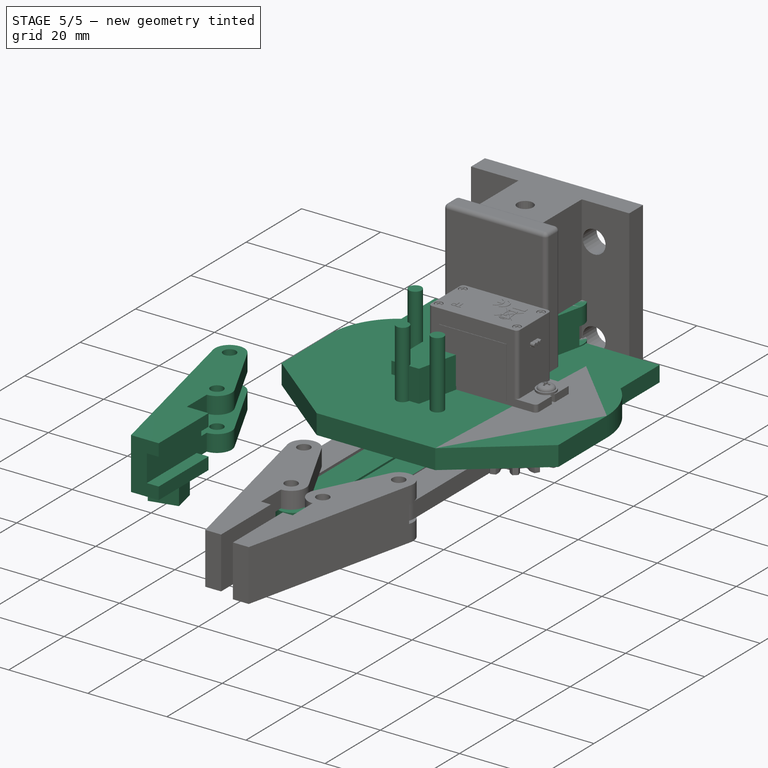
[diagram: stage 5 of 5 — iso view after this stage's code; geometry added in this stage tinted green]
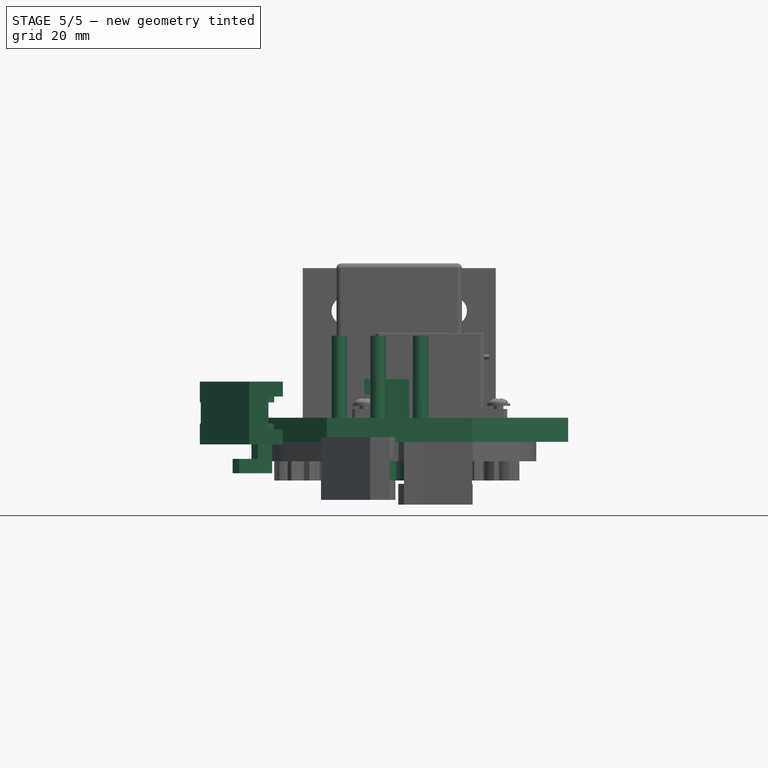
[diagram: stage 5 of 5 — front view after this stage's code; geometry added in this stage tinted green]
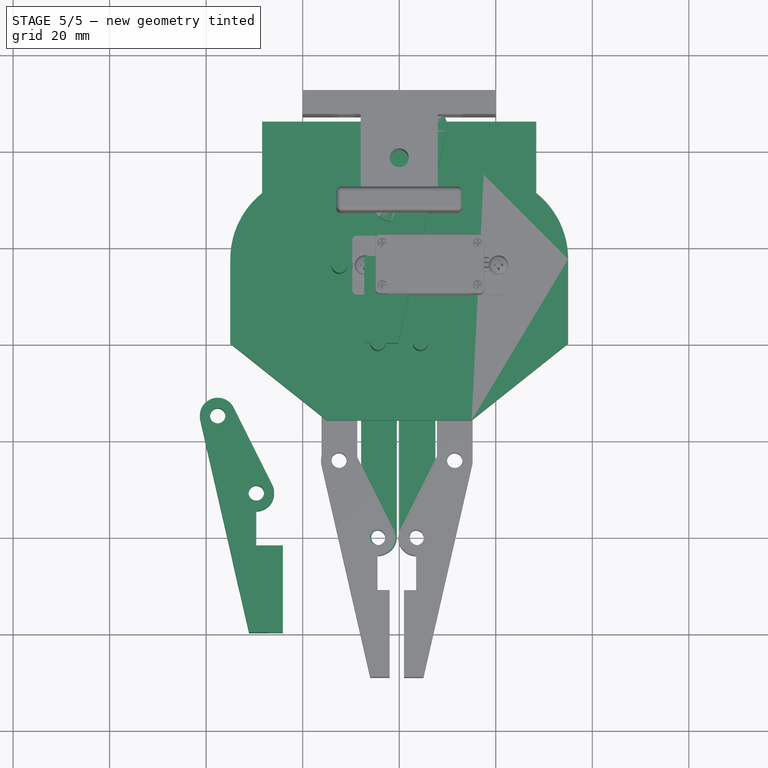
[diagram: stage 5 of 5 — top view after this stage's code; geometry added in this stage tinted green]
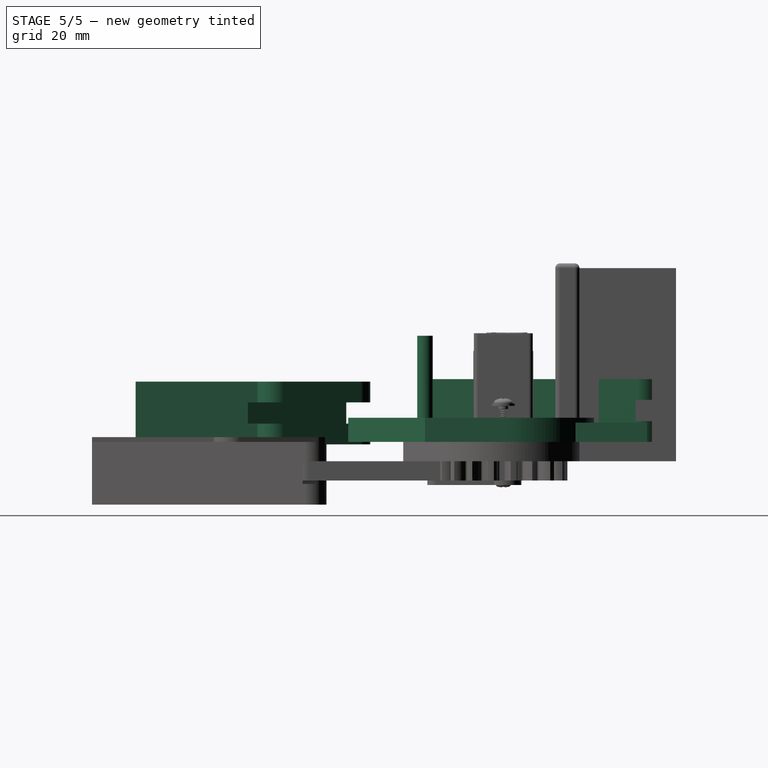
[diagram: stage 5 of 5 — right view after this stage's code; geometry added in this stage tinted green]
FEATURE [Sketcher::SketchObject] Sketch
  sketch-geometry (8):
    g0: LineSegment StartX=-15 StartY=-15.9089 StartZ=0 EndX=15 EndY=-15.9089 EndZ=0
    g1: LineSegment StartX=15 StartY=-15.9089 StartZ=0 EndX=35 EndY=0 EndZ=0
    g2: LineSegment StartX=35 StartY=0 StartZ=0 EndX=35 EndY=17.5 EndZ=0
    g3: LineSegment StartX=17.5 StartY=35 StartZ=0 EndX=-17.5 EndY=35 EndZ=0
    g4: LineSegment StartX=-35 StartY=17.5 StartZ=0 EndX=-35 EndY=0 EndZ=0
    g5: LineSegment StartX=-35 StartY=0 StartZ=0 EndX=-15 EndY=-15.9089 EndZ=0
    g6: ArcOfCircle CenterX=-17.5 CenterY=17.5 CenterZ=0 NormalX=0 NormalY=0 NormalZ=1 Radius=17.5 StartAngle=1.5708 EndAngle=3.14159
    g7: ArcOfCircle CenterX=17.5 CenterY=17.5 CenterZ=0 NormalX=0 NormalY=0 NormalZ=1 Radius=17.5 StartAngle=0 EndAngle=1.5708
  constraints (18):
    c: Horizontal(g0)
    c: Coincident(g0,g1)
    c: PointOnObject(g1,g-1)
    c: Coincident(g1,g2)
    c: Vertical(g2)
    c: Horizontal(g3)
    c: Vertical(g4)
    c: Coincident(g4,g5)
    c: Coincident(g5,g0)
    c: PointOnObject(g4,g-1)
    c: Symmetric(g4,g1,g-2)
    c: Symmetric(g0,g0,g-2)
    c: DistanceX(g0,g0) = 30
    c: Symmetric(g7,g6,g-2)
    c: Coincident(g7,g2)
    c: Coincident(g7,g3)
    c: Coincident(g6,g3)
    c: Coincident(g6,g4)
FEATURE [PartDesign::Pad] Pad
  Length = 5
  Length2 = 100
  Sketch = -> Sketch
  Type = 0
FEATURE [Sketcher::SketchObject] Sketch002  label="link-body-sketch"
  sketch-geometry (4):
    g0: ArcOfCircle CenterX=0 CenterY=0 CenterZ=0 NormalX=0 NormalY=0 NormalZ=1 Radius=3.7 StartAngle=1.5708 EndAngle=4.71239
    g1: ArcOfCircle CenterX=40 CenterY=0 CenterZ=0 NormalX=0 NormalY=0 NormalZ=1 Radius=3.7 StartAngle=4.71239 EndAngle=7.85398
    g2: LineSegment StartX=0 StartY=-3.7 StartZ=0 EndX=40 EndY=-3.7 EndZ=0
    g3: LineSegment StartX=0 StartY=3.7 StartZ=0 EndX=40 EndY=3.7 EndZ=0
  constraints (9):
    c: Tangent(g0,g3) = 1.5708
    c: Tangent(g0,g2) = -1.5708
    c: Tangent(g2,g1) = -1.5708
    c: Tangent(g3,g1) = 1.5708
    c: Horizontal(g2)
    c: Equal(g0,g1)
    c: Coincident(g0,g-1)
    c: Radius(g0) = 3.7
    c: DistanceX(g2) = 40
FEATURE [PartDesign::Pad] Pad002  label="link-body"
  Length = 4
  Length2 = 100
  Sketch = -> Sketch002
  Type = 0
FEATURE [Part::FeaturePython] Clone005  label="link-drill-1"  # Draft clone (typed FeaturePython)
  Objects = -> [Cylinder005]
  Placement = pos=(0,0,-8) rot=(0,0,1;0rad)
  Scale = (1,1,1)
FEATURE [Part::MultiFuse] Fusion013
  Shapes = -> [Clone005,Clone006]
FEATURE [Part::Cut] Cut001  label="link-master"
  Base = -> Pad002
  Placement = pos=(3.8,-40,-8) rot=(0,0,1;1.5708rad)
  Tool = -> Fusion013
FEATURE [Sketcher::SketchObject] Sketch008  label="base-sketch001"
  sketch-geometry (12):
    g0: LineSegment StartX=14.5274 StartY=-4.5 StartZ=0 EndX=-14.5274 EndY=-4.5 EndZ=0
    g1: LineSegment StartX=-14.5274 StartY=-4.5 StartZ=0 EndX=-23.7137 EndY=4.68633 EndZ=0
    g2: LineSegment StartX=14.5274 StartY=-4.5 StartZ=0 EndX=23.7137 EndY=4.68633 EndZ=0
    g3: LineSegment [constr] StartX=-12.4 StartY=16 StartZ=0 EndX=12.4 EndY=16 EndZ=0
    g4: LineSegment [constr] StartX=-12.4 StartY=16 StartZ=0 EndX=-4.4 EndY=0 EndZ=0
    g5: LineSegment [constr] StartX=-4.4 StartY=0 StartZ=0 EndX=4.4 EndY=0 EndZ=0
    g6: LineSegment [constr] StartX=4.4 StartY=0 StartZ=0 EndX=12.4 EndY=16 EndZ=0
    g7: ArcOfCircle CenterX=-12.4 CenterY=16 CenterZ=0 NormalX=0 NormalY=0 NormalZ=1 Radius=16 StartAngle=3.14159 EndAngle=3.92699
    g8: LineSegment StartX=-28.4 StartY=16 StartZ=0 EndX=-28.4 EndY=46 EndZ=0
    g9: LineSegment StartX=-28.4 StartY=46 StartZ=0 EndX=28.4 EndY=46 EndZ=0
    g10: ArcOfCircle CenterX=12.4 CenterY=16 CenterZ=0 NormalX=0 NormalY=0 NormalZ=1 Radius=16 StartAngle=5.49779 EndAngle=6.28319
    g11: LineSegment StartX=28.4 StartY=46 StartZ=0 EndX=28.4 EndY=16 EndZ=0
  constraints (35):
    c: Horizontal(g0)
    c: Coincident(g0,g1)
    c: Coincident(g0,g2)
    c: Coincident(g4,g5)
    c: Horizontal(g5)
    c: Coincident(g5,g6)
    c: Coincident(g6,g3)
    c: Coincident(g4,g3)
    c: PointOnObject(g5,g-1)
    c: Symmetric(g4,g5,g-2)
    c: Symmetric(g3,g3,g-2)
    c: DistanceX(g5) = 8.8
    c: DistanceX(g3) = 24.8
    c: DistanceY(g3,g5) = -16
    c: Symmetric(g0,g0,g-2)
    c: DistanceY(g5,g0) = -4.5
    c: Angle(g-1,g1) = 2.35619
    c: Symmetric(g1,g2,g-2)
    c: Coincident(g7,g3)
    c: Coincident(g7,g1)
    c: Radius(g7) = 16
    c: PointOnObject(g7,g3)
    c: Vertical(g8)
    c: Coincident(g8,g7)
    c: DistanceY(g8) = 30
    c: Horizontal(g9)
    c: Coincident(g9,g8)
    c: Coincident(g10,g3)
    c: Coincident(g10,g2)
    c: Tangent(g7,g1)
    c: Symmetric(g10,g7,g-2)
    c: Symmetric(g8,g9,g-2)
    c: Vertical(g11)
    c: Coincident(g11,g10)
    c: Coincident(g11,g9)
FEATURE [PartDesign::Pad] Pad006  label="base-body001"
  Length = 4
  Length2 = 100
  Sketch = -> Sketch008
  Type = 0
FEATURE [Part::FeaturePython] Clone023  label="base-drill-005"  # Draft clone (typed FeaturePython)
  Objects = -> [Cylinder006]
  Placement = pos=(-12.4012,16,-8) rot=(0,0,1;0rad)
  Scale = (1,1,1)
FEATURE [Part::FeaturePython] Clone024  label="base-drill-006"  # Draft clone (typed FeaturePython)
  Objects = -> [Cylinder006]
  Placement = pos=(-4.40118,-8.7e-11,-8) rot=(0,0,1;0rad)
  Scale = (1,1,1)
FEATURE [Part::FeaturePython] Clone025  label="base-drill-007"  # Draft clone (typed FeaturePython)
  Objects = -> [Cylinder006]
  Placement = pos=(12.4011,16,-8) rot=(0,0,1;0rad)
  Scale = (1,1,1)
FEATURE [Part::FeaturePython] Clone026  label="base-drill-008"  # Draft clone (typed FeaturePython)
  Objects = -> [Cylinder006]
  Placement = pos=(4.40118,-5.3e-11,-8) rot=(0,0,1;0rad)
  Scale = (1,1,1)
FEATURE [Part::MultiFuse] Fusion014  label="base-drills001"
  Shapes = -> [Clone023,Clone025,Clone024,Clone026]
FEATURE [Sketcher::SketchObject] Sketch010
  Placement = pos=(0,0,0) rot=(1,0,0;1.5708rad)
  Support = -> Box007 [Face3]
  sketch-geometry (4):
    g0: LineSegment StartX=0 StartY=0 StartZ=0 EndX=2 EndY=0 EndZ=0
    g1: LineSegment StartX=2 StartY=0 StartZ=0 EndX=2 EndY=2 EndZ=0
    g2: LineSegment StartX=2 StartY=2 StartZ=0 EndX=0 EndY=2 EndZ=0
    g3: LineSegment StartX=0 StartY=2 StartZ=0 EndX=0 EndY=0 EndZ=0
  constraints (11):
    c: Coincident(g0,g1)
    c: Coincident(g1,g2)
    c: Coincident(g2,g3)
    c: Coincident(g3,g0)
    c: Horizontal(g0)
    c: Horizontal(g2)
    c: Vertical(g1)
    c: Vertical(g3)
    c: Coincident(g0,g-1)
    c: DistanceY(g1) = 2
    c: Equal(g2,g1)
FEATURE [PartDesign::Pocket] Pocket003  label="hook-src"
  Length = 5
  Sketch = -> Sketch010
  Type = 1
FEATURE [Part::FeaturePython] Clone027  label="right-finger-guide"  # Draft clone (typed FeaturePython)
  Objects = -> [Pocket001]
  Placement = pos=(-7.25228,0,13) rot=(0,1,0;3.14159rad)
  Scale = (1,1,1)
FEATURE [App::DocumentObjectGroup] Group  label="claw-finger-src"
  Group = -> [Pad001,Cylinder005,Cut010,Cylinder006,Pocket003,Box007,Clone027]
FEATURE [Sketcher::SketchObject] Sketch011
  Placement = pos=(0,0,4) rot=(0,0,1;0rad)
  sketch-geometry (4):
    g0: LineSegment StartX=-28.4 StartY=46 StartZ=0 EndX=28.4 EndY=46 EndZ=0
    g1: LineSegment StartX=28.4 StartY=46 StartZ=0 EndX=28.4 EndY=31 EndZ=0
    g2: LineSegment StartX=28.4 StartY=31 StartZ=0 EndX=-28.4 EndY=31 EndZ=0
    g3: LineSegment StartX=-28.4 StartY=31 StartZ=0 EndX=-28.4 EndY=46 EndZ=0
  constraints (9):
    c: Coincident(g0,g1)
    c: Coincident(g1,g2)
    c: Coincident(g2,g3)
    c: Coincident(g3,g0)
    c: Horizontal(g0)
    c: Horizontal(g2)
    c: Vertical(g1)
    c: Vertical(g3)
    c: DistanceY(g1) = -15
FEATURE [Sketcher::SketchObject] Sketch012
  Placement = pos=(0,0,0) rot=(1,0,0;3.14159rad)
  sketch-geometry (8):
    g0: LineSegment StartX=-16 StartY=-36 StartZ=0 EndX=-16 EndY=-46 EndZ=0
    g1: LineSegment StartX=-16 StartY=-46 StartZ=0 EndX=-21 EndY=-46 EndZ=0
    g2: LineSegment StartX=-21 StartY=-46 StartZ=0 EndX=-21 EndY=-31 EndZ=0
    g3: LineSegment StartX=21 StartY=-31 StartZ=0 EndX=21 EndY=-46 EndZ=0
    g4: LineSegment StartX=21 StartY=-46 StartZ=0 EndX=16 EndY=-46 EndZ=0
    g5: LineSegment StartX=16 StartY=-46 StartZ=0 EndX=16 EndY=-36 EndZ=0
    g6: LineSegment StartX=-21 StartY=-31 StartZ=0 EndX=21 EndY=-31 EndZ=0
    g7: LineSegment StartX=-16 StartY=-36 StartZ=0 EndX=16 EndY=-36 EndZ=0
  constraints (22):
    c: Coincident(g0,g1)
    c: Coincident(g1,g2)
    c: Horizontal(g1)
    c: Vertical(g0)
    c: Vertical(g2)
    c: Coincident(g3,g4)
    c: Coincident(g4,g5)
    c: Horizontal(g4)
    c: Vertical(g3)
    c: Vertical(g5)
    c: Equal(g5,g0)
    c: Symmetric(g4,g0,g-2)
    c: Symmetric(g3,g1,g-2)
    c: DistanceX(g4,g3) = 5
    c: DistanceX(g0,g4) = 32
    c: Horizontal(g6)
    c: Coincident(g6,g2)
    c: Coincident(g6,g3)
    c: Horizontal(g7)
    c: Coincident(g7,g0)
    c: Coincident(g7,g5)
    c: DistanceY(g0,g2) = 5
FEATURE [Sketcher::SketchObject] Sketch013
  Placement = pos=(0,36,0) rot=(1,0,0;1.5708rad)
  sketch-geometry (4):
    g0: LineSegment StartX=-16 StartY=6 StartZ=0 EndX=16 EndY=6 EndZ=0
    g1: LineSegment StartX=16 StartY=6 StartZ=0 EndX=16 EndY=2 EndZ=0
    g2: LineSegment StartX=16 StartY=2 StartZ=0 EndX=-16 EndY=2 EndZ=0
    g3: LineSegment StartX=-16 StartY=2 StartZ=0 EndX=-16 EndY=6 EndZ=0
  constraints (9):
    c: Coincident(g0,g1)
    c: Coincident(g1,g2)
    c: Coincident(g2,g3)
    c: Coincident(g3,g0)
    c: Horizontal(g0)
    c: Horizontal(g2)
    c: Vertical(g1)
    c: Vertical(g3)
    c: DistanceY(g3) = 4
FEATURE [Sketcher::SketchObject] Sketch014
  Placement = pos=(0,0,0) rot=(1,0,0;1.5708rad)
  sketch-geometry (6):
    g0: LineSegment StartX=0 StartY=0 StartZ=0 EndX=0 EndY=3 EndZ=0
    g1: LineSegment StartX=0 StartY=3 StartZ=0 EndX=4 EndY=3 EndZ=0
    g2: LineSegment StartX=4 StartY=3 StartZ=0 EndX=4 EndY=6 EndZ=0
    g3: LineSegment StartX=4 StartY=6 StartZ=0 EndX=7 EndY=6 EndZ=0
    g4: LineSegment StartX=7 StartY=6 StartZ=0 EndX=7 EndY=0 EndZ=0
    g5: LineSegment StartX=7 StartY=0 StartZ=0 EndX=0 EndY=0 EndZ=0
  constraints (17):
    c: Coincident(g-1,g0)
    c: PointOnObject(g0,g-2)
    c: Coincident(g0,g1)
    c: Horizontal(g1)
    c: Coincident(g1,g2)
    c: Vertical(g2)
    c: Coincident(g2,g3)
    c: Horizontal(g3)
    c: Coincident(g3,g4)
    c: Vertical(g4)
    c: Coincident(g4,g5)
    c: Coincident(g5,g0)
    c: Horizontal(g5)
    c: DistanceX(g5) = -7
    c: DistanceX(g1) = 4
    c: DistanceY(g4) = -6
    c: DistanceY(g0) = 3
FEATURE [Part::Part2DObjectPython] Circle001  # Draft 2D object (typed FeaturePython)
  FirstAngle = 0
  LastAngle = 0
  MakeFace = true
  Placement = pos=(-8.87965,74.2543,0) rot=(1,0,0;1.5708rad)
  Radius = 2
FEATURE [Part::FeaturePython] Clone038  label="Clone of left-finger-master"  # WARN: FeaturePython — macro-defined, semantics opaque (R4)
  Placement = pos=(-24.1105,-59.9563,-0.5) rot=(0,0,1;0rad)
  Scale = (1,1,1)
FEATURE [Part::Part2DObjectPython] Rectangle  # Draft 2D object (typed FeaturePython)
  ChamferSize = 0
  FilletRadius = 0
  Height = 1
  Length = 1
  MakeFace = true
  Placement = pos=(-0.0842743,-51.0735,-1) rot=(0.57735,0.57735,0.57735;2.0944rad)
FEATURE [App::DocumentObjectGroup] Group003  label="gear-src"
  Group = -> [Clone038,Pad006,Fusion014,Sketch011,Sketch012,Sketch013,Circle001,Rectangle]
FEATURE [App::DocumentObjectGroup] Group006  label="src"
  Group = -> [Group,Group002,Group003]
FEATURE [Part::FeaturePython] Clone  label="Clone of link-master"  # Draft clone (typed FeaturePython)
  Objects = -> [Cut001]
  Placement = pos=(-4.2,-40,-8) rot=(0,0,1;1.5708rad)
  Scale = (1,1,1)
FEATURE [Part::MultiFuse] Fusion020
  Shapes = -> [Fusion019,Cut001,Clone]
FEATURE [App::DocumentObjectGroup] Grupo  label="Junto"
  Group = -> [bridafinal001,bridafinal001001,Fusion020]
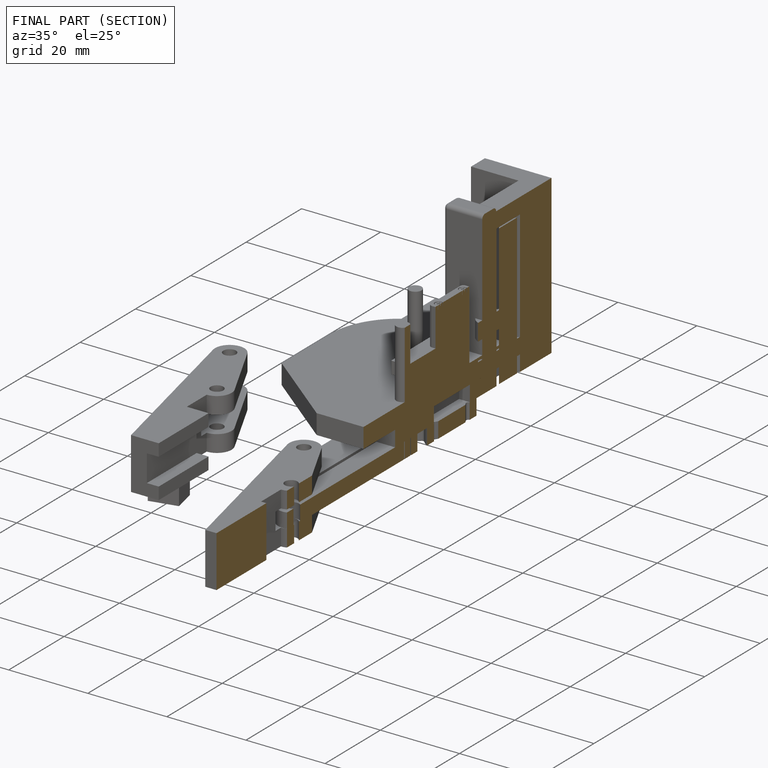
[diagram: finished part — half-section view (interior)]
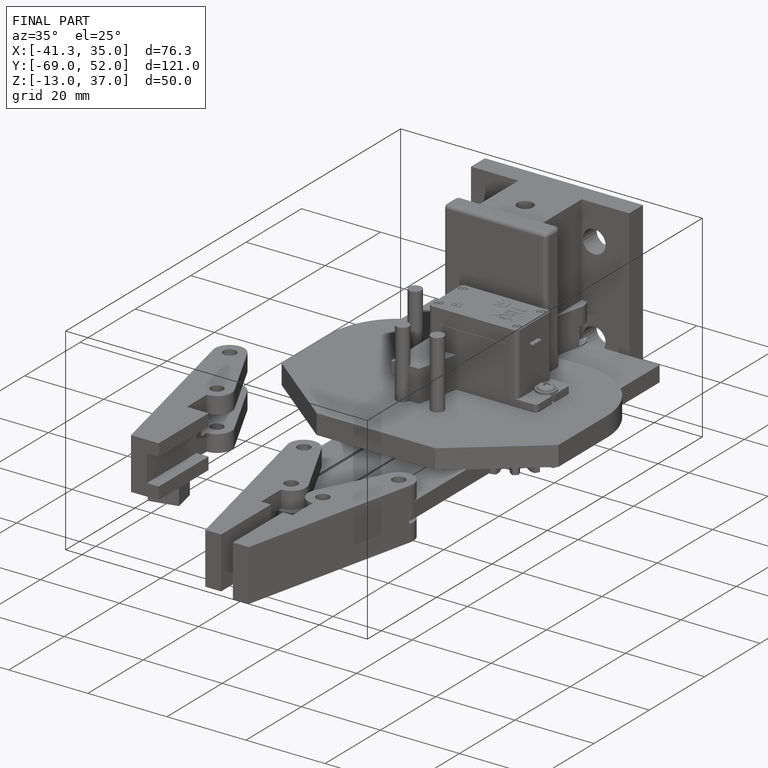
[diagram: finished part — iso view with bounding-box wireframe]
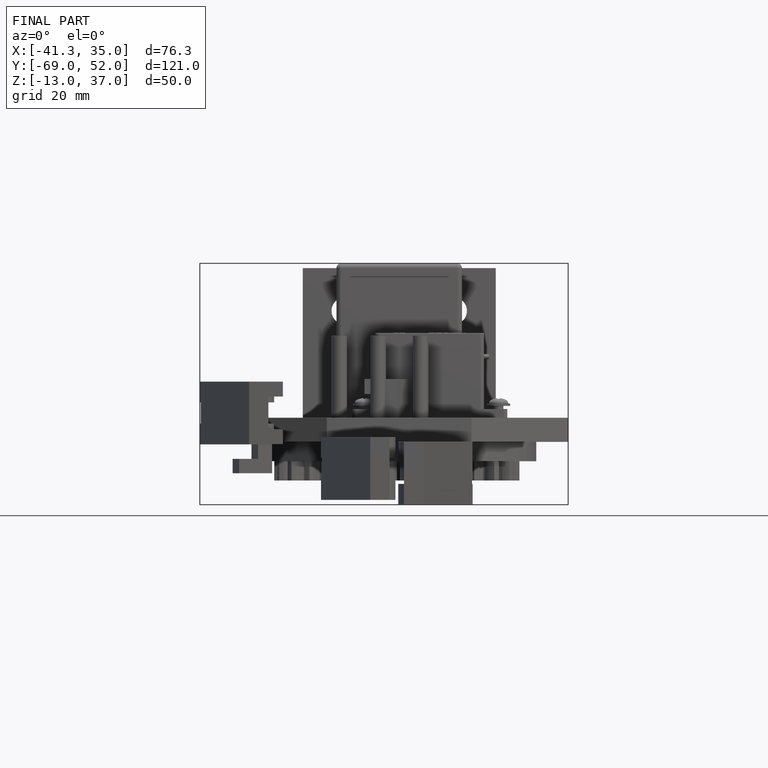
[diagram: finished part — front view with bounding-box wireframe]
